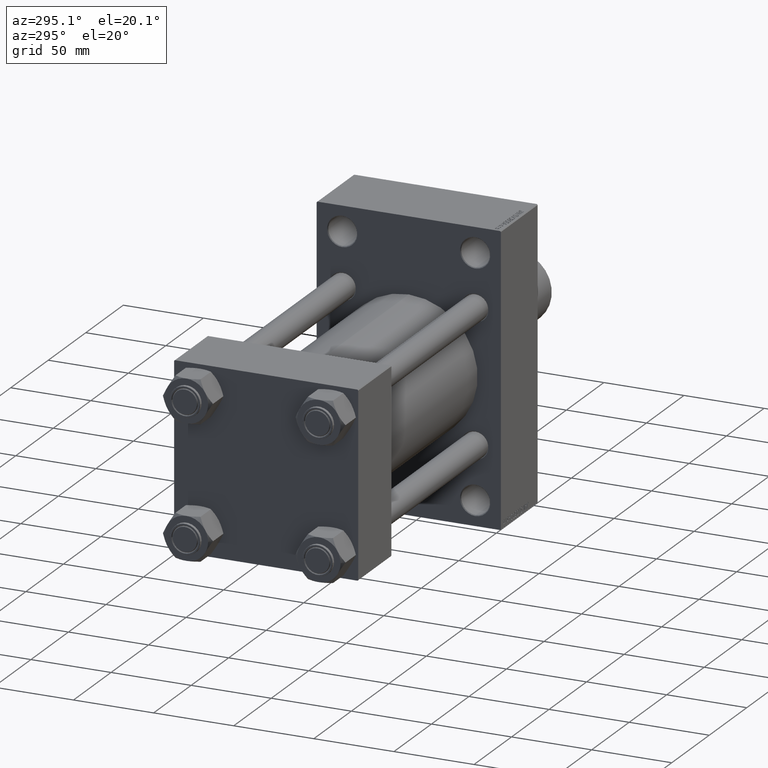
[diagram: clean part render]
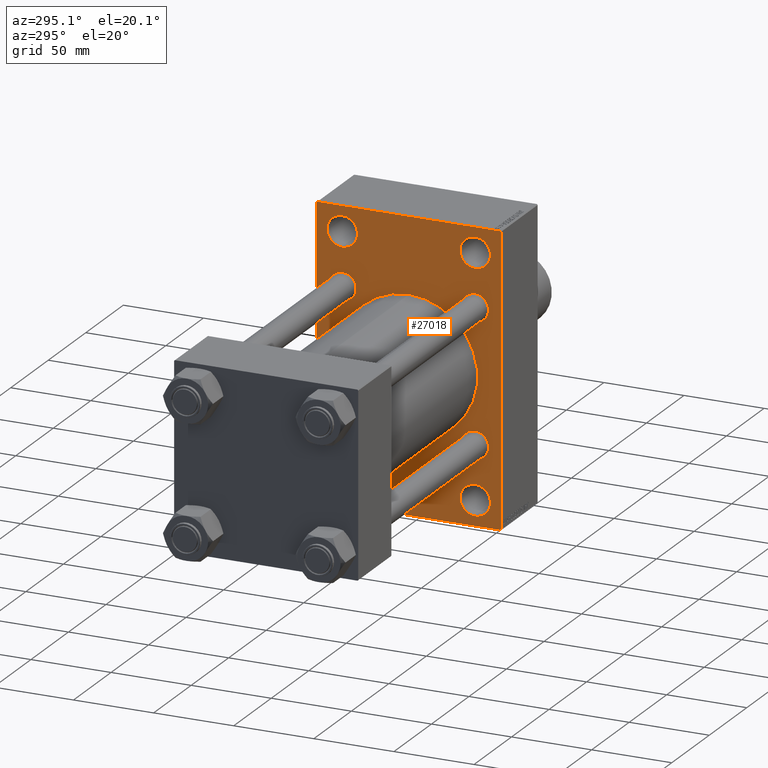
[diagram: same view with one face highlighted and labeled with its STEP entity id]
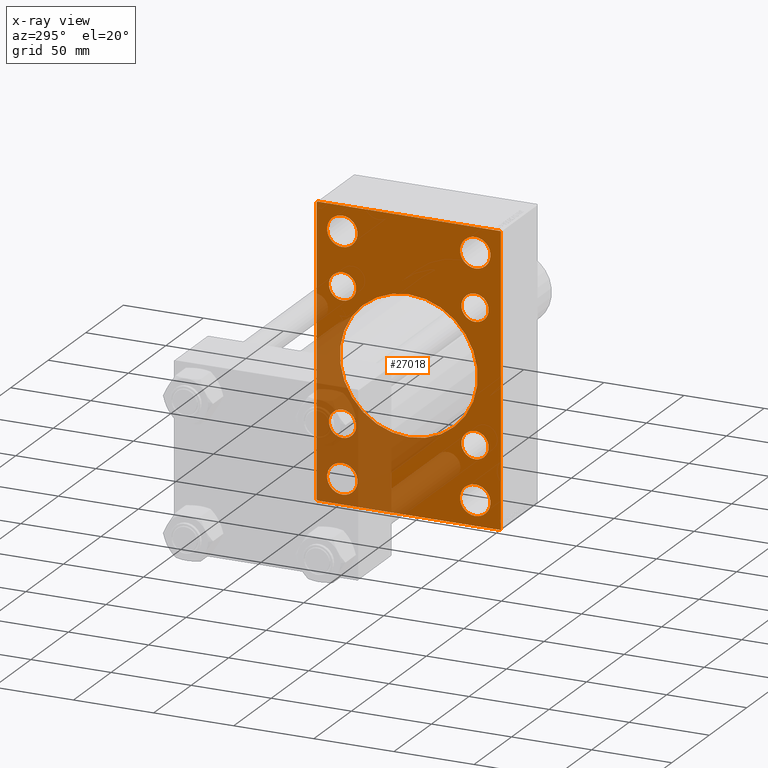
[diagram: x-ray of the same camera — body ghosted, the highlighted face saturated]
A machine part, auxiliary view. The second image highlights one B-rep face of the part: STEP entity #27018.
The next image is the same camera in x-ray: the body ghosted, the highlighted face saturated — about 32% of this face is hidden behind the body in this view.
In plain terms, the highlighted planar face has unit normal (-1, 0, 0).
Its self-contained STEP definition (entity closure, byte-faithful):
#62 = CARTESIAN_POINT ( 'NONE',  ( 190.0000000000000000, 41.50000000000000711, 65.00000000000002842 ) ) ;
#193 = EDGE_CURVE ( 'NONE', #34717, #14435, #16323, .T. ) ;
#359 = EDGE_LOOP ( 'NONE', ( #26275, #12807 ) ) ;
#438 = ORIENTED_EDGE ( 'NONE', *, *, #7741, .T. ) ;
#926 = ORIENTED_EDGE ( 'NONE', *, *, #193, .T. ) ;
#1126 = CARTESIAN_POINT ( 'NONE',  ( 190.0000000000000000, 41.34999999999999432, -32.84999999999999432 ) ) ;
#1799 = DIRECTION ( 'NONE',  ( 1.000000000000000000, -0.000000000000000000, 0.000000000000000000 ) ) ;
#1908 = LINE ( 'NONE', #20473, #36001 ) ;
#1976 = CARTESIAN_POINT ( 'NONE',  ( 190.0000000000000000, 41.34999999999999432, -41.35000000000000142 ) ) ;
#1982 = CARTESIAN_POINT ( 'NONE',  ( 190.0000000000000000, 41.34999999999999432, 41.35000000000000142 ) ) ;
#1987 = VERTEX_POINT ( 'NONE', #34053 ) ;
#1989 = DIRECTION ( 'NONE',  ( 1.000000000000000000, 0.000000000000000000, 0.000000000000000000 ) ) ;
#2049 = DIRECTION ( 'NONE',  ( 1.000000000000000000, -0.000000000000000000, 0.000000000000000000 ) ) ;
#2200 = LINE ( 'NONE', #12486, #34578 ) ;
#2221 = DIRECTION ( 'NONE',  ( 1.000000000000000000, -0.000000000000000000, 0.000000000000000000 ) ) ;
#2254 = CARTESIAN_POINT ( 'NONE',  ( 190.0000000000000000, -41.49999999999999289, -74.49999999999998579 ) ) ;
#2422 = PLANE ( 'NONE',  #47032 ) ;
#2457 = AXIS2_PLACEMENT_3D ( 'NONE', #36390, #29533, #32961 ) ;
#2486 = CIRCLE ( 'NONE', #43864, 8.500000000000007105 ) ;
#2753 = CARTESIAN_POINT ( 'NONE',  ( 190.0000000000000000, 41.34999999999999432, -41.35000000000000142 ) ) ;
#2902 = FACE_BOUND ( 'NONE', #16479, .T. ) ;
#3150 = FACE_BOUND ( 'NONE', #30675, .T. ) ;
#3524 = DIRECTION ( 'NONE',  ( 1.000000000000000000, -0.000000000000000000, 0.000000000000000000 ) ) ;
#3668 = CIRCLE ( 'NONE', #27813, 8.500000000000007105 ) ;
#3902 = EDGE_CURVE ( 'NONE', #14435, #34717, #10978, .T. ) ;
#4246 = ORIENTED_EDGE ( 'NONE', *, *, #13984, .T. ) ;
#5205 = VECTOR ( 'NONE', #47116, 1000.000000000000000 ) ;
#5890 = DIRECTION ( 'NONE',  ( 1.000000000000000000, -0.000000000000000000, 0.000000000000000000 ) ) ;
#5970 = EDGE_CURVE ( 'NONE', #26288, #47533, #36781, .T. ) ;
#5997 = AXIS2_PLACEMENT_3D ( 'NONE', #27438, #46267, #32056 ) ;
#6002 = CIRCLE ( 'NONE', #33310, 8.500000000000007105 ) ;
#6137 = EDGE_CURVE ( 'NONE', #39086, #32039, #1908, .T. ) ;
#6203 = DIRECTION ( 'NONE',  ( 0.000000000000000000, 0.000000000000000000, 1.000000000000000000 ) ) ;
#6310 = ORIENTED_EDGE ( 'NONE', *, *, #48299, .T. ) ;
#6309 = CARTESIAN_POINT ( 'NONE',  ( 190.0000000000000000, -2.602085213965210642E-15, 0.000000000000000000 ) ) ;
#6332 = FACE_BOUND ( 'NONE', #37030, .T. ) ;
#6367 = CIRCLE ( 'NONE', #16516, 8.500000000000007105 ) ;
#6368 = DIRECTION ( 'NONE',  ( 0.000000000000000000, 0.000000000000000000, 1.000000000000000000 ) ) ;
#6543 = ORIENTED_EDGE ( 'NONE', *, *, #6137, .F. ) ;
#6558 = LINE ( 'NONE', #17064, #24348 ) ;
#6578 = FACE_BOUND ( 'NONE', #36280, .T. ) ;
#6849 = EDGE_CURVE ( 'NONE', #13662, #45450, #18900, .T. ) ;
#6872 = ORIENTED_EDGE ( 'NONE', *, *, #3902, .T. ) ;
#6988 = DIRECTION ( 'NONE',  ( 1.000000000000000000, -0.000000000000000000, 0.000000000000000000 ) ) ;
#7086 = AXIS2_PLACEMENT_3D ( 'NONE', #2254, #24724, #38666 ) ;
#7221 = ORIENTED_EDGE ( 'NONE', *, *, #18671, .T. ) ;
#7473 = DIRECTION ( 'NONE',  ( 0.000000000000000000, 0.000000000000000000, 1.000000000000000000 ) ) ;
#7741 = EDGE_CURVE ( 'NONE', #35356, #14170, #13334, .T. ) ;
#7899 = CARTESIAN_POINT ( 'NONE',  ( 190.0000000000000000, -41.34999999999998721, -49.85000000000002274 ) ) ;
#8190 = CARTESIAN_POINT ( 'NONE',  ( 190.0000000000000000, 57.00000000000002842, 89.99999999999998579 ) ) ;
#8699 = EDGE_CURVE ( 'NONE', #45450, #13662, #21245, .T. ) ;
#9423 = EDGE_LOOP ( 'NONE', ( #438, #44159 ) ) ;
#9562 = DIRECTION ( 'NONE',  ( 0.000000000000000000, 0.000000000000000000, -1.000000000000000000 ) ) ;
#9574 = EDGE_CURVE ( 'NONE', #26911, #39547, #6367, .T. ) ;
#9787 = DIRECTION ( 'NONE',  ( 1.000000000000000000, -0.000000000000000000, 0.000000000000000000 ) ) ;
#9937 = LINE ( 'NONE', #32637, #22356 ) ;
#10017 = VECTOR ( 'NONE', #39006, 1000.000000000000000 ) ;
#10025 = DIRECTION ( 'NONE',  ( 0.000000000000000000, 0.000000000000000000, 1.000000000000000000 ) ) ;
#10138 = EDGE_LOOP ( 'NONE', ( #36700, #33671 ) ) ;
#10217 = DIRECTION ( 'NONE',  ( 0.000000000000000000, 0.000000000000000000, -1.000000000000000000 ) ) ;
#10242 = DIRECTION ( 'NONE',  ( -1.000000000000000000, 0.000000000000000000, -0.000000000000000000 ) ) ;
#10311 = EDGE_LOOP ( 'NONE', ( #24171, #44027, #6543, #17138, #31535, #42494, #13004, #4246 ) ) ;
#10362 = DIRECTION ( 'NONE',  ( 1.000000000000000000, -0.000000000000000000, 0.000000000000000000 ) ) ;
#10724 = ORIENTED_EDGE ( 'NONE', *, *, #5970, .T. ) ;
#10794 = VERTEX_POINT ( 'NONE', #30797 ) ;
#10978 = CIRCLE ( 'NONE', #7086, 9.500000000000063949 ) ;
#10997 = EDGE_CURVE ( 'NONE', #41437, #35428, #2486, .T. ) ;
#11504 = VERTEX_POINT ( 'NONE', #26675 ) ;
#11626 = VERTEX_POINT ( 'NONE', #33773 ) ;
#11970 = CARTESIAN_POINT ( 'NONE',  ( 190.0000000000000000, 41.34999999999999432, -49.85000000000001563 ) ) ;
#12091 = ORIENTED_EDGE ( 'NONE', *, *, #6849, .T. ) ;
#12471 = CARTESIAN_POINT ( 'NONE',  ( 190.0000000000000000, 41.50000000000000711, 74.50000000000001421 ) ) ;
#12486 = CARTESIAN_POINT ( 'NONE',  ( 190.0000000000000000, -73.49999999999923261, -73.50000000000127898 ) ) ;
#12650 = CARTESIAN_POINT ( 'NONE',  ( 190.0000000000000000, 56.99999999999995026, -90.00000000000000000 ) ) ;
#12790 = CARTESIAN_POINT ( 'NONE',  ( 190.0000000000000000, -41.34999999999998721, 41.35000000000000853 ) ) ;
#12807 = ORIENTED_EDGE ( 'NONE', *, *, #43928, .T. ) ;
#12819 = CARTESIAN_POINT ( 'NONE',  ( 190.0000000000000000, -41.49999999999999289, 74.50000000000001421 ) ) ;
#13004 = ORIENTED_EDGE ( 'NONE', *, *, #25309, .T. ) ;
#13334 = CIRCLE ( 'NONE', #16483, 8.500000000000007105 ) ;
#13426 = CARTESIAN_POINT ( 'NONE',  ( 190.0000000000000000, -41.49999999999999289, -64.99999999999991473 ) ) ;
#13659 = FACE_BOUND ( 'NONE', #359, .T. ) ;
#13662 = VERTEX_POINT ( 'NONE', #11970 ) ;
#13984 = EDGE_CURVE ( 'NONE', #11626, #35317, #16069, .T. ) ;
#14170 = VERTEX_POINT ( 'NONE', #25301 ) ;
#14435 = VERTEX_POINT ( 'NONE', #13426 ) ;
#14613 = DIRECTION ( 'NONE',  ( 0.000000000000000000, 0.7071067811865474617, -0.7071067811865474617 ) ) ;
#16069 = LINE ( 'NONE', #42911, #10017 ) ;
#16323 = CIRCLE ( 'NONE', #43617, 9.500000000000063949 ) ;
#16393 = VERTEX_POINT ( 'NONE', #8190 ) ;
#16479 = EDGE_LOOP ( 'NONE', ( #21407, #26947 ) ) ;
#16483 = AXIS2_PLACEMENT_3D ( 'NONE', #1982, #9787, #24684 ) ;
#16516 = AXIS2_PLACEMENT_3D ( 'NONE', #26488, #6988, #7473 ) ;
#16652 = LINE ( 'NONE', #31045, #47895 ) ;
#16722 = CARTESIAN_POINT ( 'NONE',  ( 190.0000000000000000, 57.49999999999997158, 89.50000000000004263 ) ) ;
#16878 = AXIS2_PLACEMENT_3D ( 'NONE', #12819, #38948, #30885 ) ;
#17031 = CARTESIAN_POINT ( 'NONE',  ( 190.0000000000000000, 41.34999999999999432, 49.85000000000001563 ) ) ;
#17064 = CARTESIAN_POINT ( 'NONE',  ( 190.0000000000000000, 57.49999999999997158, 89.99999999999998579 ) ) ;
#17135 = CIRCLE ( 'NONE', #44449, 8.500000000000007105 ) ;
#17138 = ORIENTED_EDGE ( 'NONE', *, *, #41265, .T. ) ;
#17563 = FACE_BOUND ( 'NONE', #9423, .T. ) ;
#18213 = EDGE_LOOP ( 'NONE', ( #6310, #39019 ) ) ;
#18407 = CARTESIAN_POINT ( 'NONE',  ( 190.0000000000000000, 41.50000000000000711, -74.50000000000000000 ) ) ;
#18671 = EDGE_CURVE ( 'NONE', #47533, #26288, #39828, .T. ) ;
#18900 = CIRCLE ( 'NONE', #43867, 8.500000000000007105 ) ;
#19144 = VERTEX_POINT ( 'NONE', #42720 ) ;
#19785 = VERTEX_POINT ( 'NONE', #16722 ) ;
#19883 = EDGE_CURVE ( 'NONE', #39547, #26911, #17135, .T. ) ;
#20473 = CARTESIAN_POINT ( 'NONE',  ( 190.0000000000000000, -57.50000000000002132, 89.99999999999997158 ) ) ;
#20984 = FACE_BOUND ( 'NONE', #18213, .T. ) ;
#21202 = DIRECTION ( 'NONE',  ( 0.000000000000000000, -1.000000000000000000, -1.206764157201257291E-16 ) ) ;
#21223 = FACE_BOUND ( 'NONE', #22498, .T. ) ;
#21245 = CIRCLE ( 'NONE', #40654, 8.500000000000007105 ) ;
#21336 = CARTESIAN_POINT ( 'NONE',  ( 190.0000000000000000, -41.34999999999998721, -32.85000000000000142 ) ) ;
#21407 = ORIENTED_EDGE ( 'NONE', *, *, #25673, .T. ) ;
#21722 = CIRCLE ( 'NONE', #44335, 9.499999999999980460 ) ;
#21832 = CARTESIAN_POINT ( 'NONE',  ( 190.0000000000000000, -41.34999999999998721, -41.35000000000000853 ) ) ;
#22089 = CARTESIAN_POINT ( 'NONE',  ( 190.0000000000000000, -41.49999999999999289, -74.49999999999998579 ) ) ;
#22356 = VECTOR ( 'NONE', #47567, 1000.000000000000000 ) ;
#22498 = EDGE_LOOP ( 'NONE', ( #6872, #926 ) ) ;
#23101 = VERTEX_POINT ( 'NONE', #24898 ) ;
#23455 = AXIS2_PLACEMENT_3D ( 'NONE', #12471, #34467, #42994 ) ;
#23661 = CARTESIAN_POINT ( 'NONE',  ( 190.0000000000000000, -57.50000000000002132, -89.49999999999997158 ) ) ;
#23787 = DIRECTION ( 'NONE',  ( 0.000000000000000000, 0.000000000000000000, 1.000000000000000000 ) ) ;
#23975 = CARTESIAN_POINT ( 'NONE',  ( 190.0000000000000000, -2.602085213965210642E-15, 0.000000000000000000 ) ) ;
#24171 = ORIENTED_EDGE ( 'NONE', *, *, #41714, .T. ) ;
#24270 = CARTESIAN_POINT ( 'NONE',  ( 190.0000000000000000, -41.49999999999999289, 83.99999999999998579 ) ) ;
#24348 = VECTOR ( 'NONE', #24623, 1000.000000000000000 ) ;
#24621 = CARTESIAN_POINT ( 'NONE',  ( 190.0000000000000000, 57.49999999999997868, -90.00000000000000000 ) ) ;
#24623 = DIRECTION ( 'NONE',  ( 0.000000000000000000, 3.854941057726238467E-17, -1.000000000000000000 ) ) ;
#24643 = FACE_OUTER_BOUND ( 'NONE', #10311, .T. ) ;
#24684 = DIRECTION ( 'NONE',  ( 0.000000000000000000, 0.000000000000000000, 1.000000000000000000 ) ) ;
#24724 = DIRECTION ( 'NONE',  ( 1.000000000000000000, -0.000000000000000000, 0.000000000000000000 ) ) ;
#24898 = CARTESIAN_POINT ( 'NONE',  ( 190.0000000000000000, -2.602085213965210642E-15, 43.00000000000000000 ) ) ;
#25301 = CARTESIAN_POINT ( 'NONE',  ( 190.0000000000000000, 41.34999999999999432, 32.84999999999999432 ) ) ;
#25309 = EDGE_CURVE ( 'NONE', #19785, #11626, #6558, .T. ) ;
#25606 = CARTESIAN_POINT ( 'NONE',  ( 190.0000000000000000, 0.000000000000000000, 0.000000000000000000 ) ) ;
#25673 = EDGE_CURVE ( 'NONE', #23101, #34740, #29006, .T. ) ;
#25914 = ORIENTED_EDGE ( 'NONE', *, *, #19883, .T. ) ;
#26226 = CIRCLE ( 'NONE', #46498, 9.499999999999980460 ) ;
#26275 = ORIENTED_EDGE ( 'NONE', *, *, #39608, .T. ) ;
#26288 = VERTEX_POINT ( 'NONE', #30935 ) ;
#26488 = CARTESIAN_POINT ( 'NONE',  ( 190.0000000000000000, -41.34999999999998721, -41.35000000000000853 ) ) ;
#26675 = CARTESIAN_POINT ( 'NONE',  ( 190.0000000000000000, 41.50000000000000711, -83.99999999999997158 ) ) ;
#26750 = CARTESIAN_POINT ( 'NONE',  ( 190.0000000000000000, 2.663896022368408223E-15, -43.00000000000000000 ) ) ;
#26911 = VERTEX_POINT ( 'NONE', #7899 ) ;
#26947 = ORIENTED_EDGE ( 'NONE', *, *, #29065, .T. ) ;
#27018 = ADVANCED_FACE ( 'NONE', ( #13659, #21223, #20984, #3150, #46900, #17563, #6578, #6332, #2902, #24643 ), #2422, .T. ) ;
#27372 = DIRECTION ( 'NONE',  ( 0.000000000000000000, -0.7071067811865573427, 0.7071067811865378028 ) ) ;
#27438 = CARTESIAN_POINT ( 'NONE',  ( 190.0000000000000000, 41.50000000000000711, -74.50000000000000000 ) ) ;
#27631 = EDGE_CURVE ( 'NONE', #10794, #32039, #2200, .T. ) ;
#27704 = CARTESIAN_POINT ( 'NONE',  ( 190.0000000000000000, -41.49999999999999289, -84.00000000000004263 ) ) ;
#27813 = AXIS2_PLACEMENT_3D ( 'NONE', #12790, #1799, #23787 ) ;
#28165 = DIRECTION ( 'NONE',  ( 0.000000000000000000, 0.000000000000000000, 1.000000000000000000 ) ) ;
#28167 = CARTESIAN_POINT ( 'NONE',  ( 190.0000000000000000, -41.49999999999999289, 74.50000000000001421 ) ) ;
#28330 = CARTESIAN_POINT ( 'NONE',  ( 190.0000000000000000, -41.34999999999998721, 41.35000000000000853 ) ) ;
#28745 = DIRECTION ( 'NONE',  ( 1.000000000000000000, 0.000000000000000000, 0.000000000000000000 ) ) ;
#29006 = CIRCLE ( 'NONE', #39966, 43.00000000000000000 ) ;
#29065 = EDGE_CURVE ( 'NONE', #34740, #23101, #42408, .T. ) ;
#29533 = DIRECTION ( 'NONE',  ( 1.000000000000000000, -0.000000000000000000, 0.000000000000000000 ) ) ;
#29629 = CARTESIAN_POINT ( 'NONE',  ( 190.0000000000000000, 41.50000000000000711, -65.00000000000001421 ) ) ;
#30675 = EDGE_LOOP ( 'NONE', ( #10724, #7221 ) ) ;
#30797 = CARTESIAN_POINT ( 'NONE',  ( 190.0000000000000000, -57.00000000000002132, -90.00000000000001421 ) ) ;
#30885 = DIRECTION ( 'NONE',  ( 0.000000000000000000, 0.000000000000000000, 1.000000000000000000 ) ) ;
#30935 = CARTESIAN_POINT ( 'NONE',  ( 190.0000000000000000, 41.50000000000000711, 83.99999999999998579 ) ) ;
#31045 = CARTESIAN_POINT ( 'NONE',  ( 190.0000000000000000, 57.49999999999997158, 89.99999999999998579 ) ) ;
#31535 = ORIENTED_EDGE ( 'NONE', *, *, #32996, .F. ) ;
#31679 = ORIENTED_EDGE ( 'NONE', *, *, #8699, .T. ) ;
#32039 = VERTEX_POINT ( 'NONE', #23661 ) ;
#32056 = DIRECTION ( 'NONE',  ( 0.000000000000000000, 0.000000000000000000, 1.000000000000000000 ) ) ;
#32186 = LINE ( 'NONE', #24621, #5205 ) ;
#32637 = CARTESIAN_POINT ( 'NONE',  ( 190.0000000000000000, -73.50000000000117950, 73.49999999999810996 ) ) ;
#32961 = DIRECTION ( 'NONE',  ( 0.000000000000000000, 0.000000000000000000, 1.000000000000000000 ) ) ;
#32996 = EDGE_CURVE ( 'NONE', #16393, #1987, #16652, .T. ) ;
#33298 = DIRECTION ( 'NONE',  ( 1.000000000000000000, -0.000000000000000000, 0.000000000000000000 ) ) ;
#33310 = AXIS2_PLACEMENT_3D ( 'NONE', #35677, #2221, #36165 ) ;
#33316 = DIRECTION ( 'NONE',  ( 0.000000000000000000, 0.000000000000000000, 1.000000000000000000 ) ) ;
#33671 = ORIENTED_EDGE ( 'NONE', *, *, #10997, .T. ) ;
#33773 = CARTESIAN_POINT ( 'NONE',  ( 190.0000000000000000, 57.49999999999997868, -89.49999999999990052 ) ) ;
#34035 = CIRCLE ( 'NONE', #16878, 9.499999999999980460 ) ;
#34053 = CARTESIAN_POINT ( 'NONE',  ( 190.0000000000000000, -57.00000000000001421, 89.99999999999997158 ) ) ;
#34467 = DIRECTION ( 'NONE',  ( 1.000000000000000000, -0.000000000000000000, 0.000000000000000000 ) ) ;
#34578 = VECTOR ( 'NONE', #27372, 1000.000000000000000 ) ;
#34717 = VERTEX_POINT ( 'NONE', #27704 ) ;
#34740 = VERTEX_POINT ( 'NONE', #26750 ) ;
#34972 = ORIENTED_EDGE ( 'NONE', *, *, #9574, .T. ) ;
#35317 = VERTEX_POINT ( 'NONE', #12650 ) ;
#35356 = VERTEX_POINT ( 'NONE', #17031 ) ;
#35372 = DIRECTION ( 'NONE',  ( 0.000000000000000000, 0.000000000000000000, -1.000000000000000000 ) ) ;
#35428 = VERTEX_POINT ( 'NONE', #39254 ) ;
#35677 = CARTESIAN_POINT ( 'NONE',  ( 190.0000000000000000, 41.34999999999999432, 41.35000000000000142 ) ) ;
#36001 = VECTOR ( 'NONE', #35372, 1000.000000000000000 ) ;
#36165 = DIRECTION ( 'NONE',  ( 0.000000000000000000, 0.000000000000000000, 1.000000000000000000 ) ) ;
#36280 = EDGE_LOOP ( 'NONE', ( #31679, #12091 ) ) ;
#36390 = CARTESIAN_POINT ( 'NONE',  ( 190.0000000000000000, 41.50000000000000711, 74.50000000000001421 ) ) ;
#36700 = ORIENTED_EDGE ( 'NONE', *, *, #45696, .T. ) ;
#36781 = CIRCLE ( 'NONE', #2457, 9.499999999999980460 ) ;
#37030 = EDGE_LOOP ( 'NONE', ( #25914, #34972 ) ) ;
#38666 = DIRECTION ( 'NONE',  ( 0.000000000000000000, 0.000000000000000000, 1.000000000000000000 ) ) ;
#38948 = DIRECTION ( 'NONE',  ( 1.000000000000000000, -0.000000000000000000, 0.000000000000000000 ) ) ;
#39006 = DIRECTION ( 'NONE',  ( -0.000000000000000000, -0.7071067811865378028, -0.7071067811865573427 ) ) ;
#39019 = ORIENTED_EDGE ( 'NONE', *, *, #44864, .T. ) ;
#39086 = VERTEX_POINT ( 'NONE', #40321 ) ;
#39254 = CARTESIAN_POINT ( 'NONE',  ( 190.0000000000000000, -41.34999999999998721, 49.85000000000002274 ) ) ;
#39547 = VERTEX_POINT ( 'NONE', #21336 ) ;
#39608 = EDGE_CURVE ( 'NONE', #46802, #19144, #26226, .T. ) ;
#39828 = CIRCLE ( 'NONE', #23455, 9.499999999999980460 ) ;
#39884 = DIRECTION ( 'NONE',  ( 1.000000000000000000, -0.000000000000000000, 0.000000000000000000 ) ) ;
#39966 = AXIS2_PLACEMENT_3D ( 'NONE', #23975, #1989, #9562 ) ;
#40321 = CARTESIAN_POINT ( 'NONE',  ( 190.0000000000000000, -57.50000000000002132, 89.49999999999994316 ) ) ;
#40654 = AXIS2_PLACEMENT_3D ( 'NONE', #2753, #39884, #44533 ) ;
#41265 = EDGE_CURVE ( 'NONE', #39086, #1987, #9937, .T. ) ;
#41352 = DIRECTION ( 'NONE',  ( 0.000000000000000000, 0.000000000000000000, 1.000000000000000000 ) ) ;
#41437 = VERTEX_POINT ( 'NONE', #43990 ) ;
#41714 = EDGE_CURVE ( 'NONE', #35317, #10794, #32186, .T. ) ;
#42267 = EDGE_CURVE ( 'NONE', #14170, #35356, #6002, .T. ) ;
#42408 = CIRCLE ( 'NONE', #46328, 43.00000000000000000 ) ;
#42494 = ORIENTED_EDGE ( 'NONE', *, *, #42691, .T. ) ;
#42691 = EDGE_CURVE ( 'NONE', #16393, #19785, #48094, .T. ) ;
#42720 = CARTESIAN_POINT ( 'NONE',  ( 190.0000000000000000, -41.49999999999999289, 65.00000000000002842 ) ) ;
#42911 = CARTESIAN_POINT ( 'NONE',  ( 190.0000000000000000, 73.50000000000076739, -73.49999999999873523 ) ) ;
#42994 = DIRECTION ( 'NONE',  ( 0.000000000000000000, 0.000000000000000000, 1.000000000000000000 ) ) ;
#43203 = VERTEX_POINT ( 'NONE', #29629 ) ;
#43617 = AXIS2_PLACEMENT_3D ( 'NONE', #22089, #3524, #33316 ) ;
#43714 = DIRECTION ( 'NONE',  ( -0.000000000000000000, 0.000000000000000000, 1.000000000000000000 ) ) ;
#43864 = AXIS2_PLACEMENT_3D ( 'NONE', #28330, #47176, #10025 ) ;
#43867 = AXIS2_PLACEMENT_3D ( 'NONE', #1976, #5890, #6368 ) ;
#43928 = EDGE_CURVE ( 'NONE', #19144, #46802, #34035, .T. ) ;
#43990 = CARTESIAN_POINT ( 'NONE',  ( 190.0000000000000000, -41.34999999999998721, 32.85000000000000142 ) ) ;
#44027 = ORIENTED_EDGE ( 'NONE', *, *, #27631, .T. ) ;
#44159 = ORIENTED_EDGE ( 'NONE', *, *, #42267, .T. ) ;
#44335 = AXIS2_PLACEMENT_3D ( 'NONE', #18407, #33298, #41352 ) ;
#44449 = AXIS2_PLACEMENT_3D ( 'NONE', #21832, #2049, #28165 ) ;
#44533 = DIRECTION ( 'NONE',  ( 0.000000000000000000, 0.000000000000000000, 1.000000000000000000 ) ) ;
#44665 = CARTESIAN_POINT ( 'NONE',  ( 190.0000000000000000, 73.50000000000000000, 73.50000000000000000 ) ) ;
#44864 = EDGE_CURVE ( 'NONE', #11504, #43203, #48138, .T. ) ;
#45450 = VERTEX_POINT ( 'NONE', #1126 ) ;
#45696 = EDGE_CURVE ( 'NONE', #35428, #41437, #3668, .T. ) ;
#46267 = DIRECTION ( 'NONE',  ( 1.000000000000000000, -0.000000000000000000, 0.000000000000000000 ) ) ;
#46328 = AXIS2_PLACEMENT_3D ( 'NONE', #6309, #28745, #10217 ) ;
#46498 = AXIS2_PLACEMENT_3D ( 'NONE', #28167, #10362, #6203 ) ;
#46604 = VECTOR ( 'NONE', #14613, 1000.000000000000114 ) ;
#46802 = VERTEX_POINT ( 'NONE', #24270 ) ;
#46900 = FACE_BOUND ( 'NONE', #10138, .T. ) ;
#47032 = AXIS2_PLACEMENT_3D ( 'NONE', #25606, #10242, #43714 ) ;
#47116 = DIRECTION ( 'NONE',  ( 0.000000000000000000, -1.000000000000000000, -1.206764157201257045E-16 ) ) ;
#47176 = DIRECTION ( 'NONE',  ( 1.000000000000000000, -0.000000000000000000, 0.000000000000000000 ) ) ;
#47533 = VERTEX_POINT ( 'NONE', #62 ) ;
#47567 = DIRECTION ( 'NONE',  ( -0.000000000000000000, 0.7071067811865328068, 0.7071067811865622277 ) ) ;
#47895 = VECTOR ( 'NONE', #21202, 1000.000000000000000 ) ;
#48094 = LINE ( 'NONE', #44665, #46604 ) ;
#48138 = CIRCLE ( 'NONE', #5997, 9.499999999999980460 ) ;
#48299 = EDGE_CURVE ( 'NONE', #43203, #11504, #21722, .T. ) ;